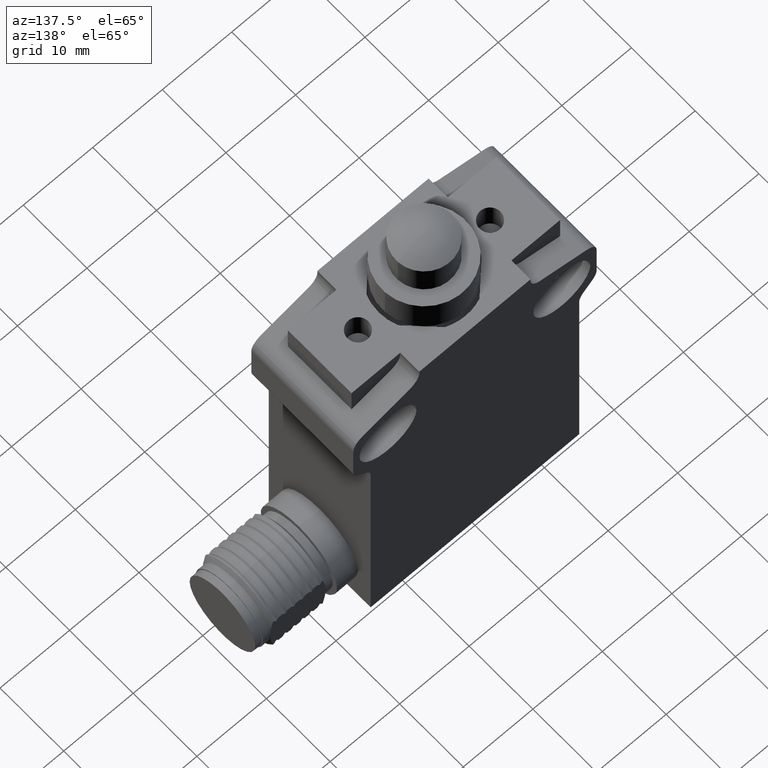
[diagram: clean part render]
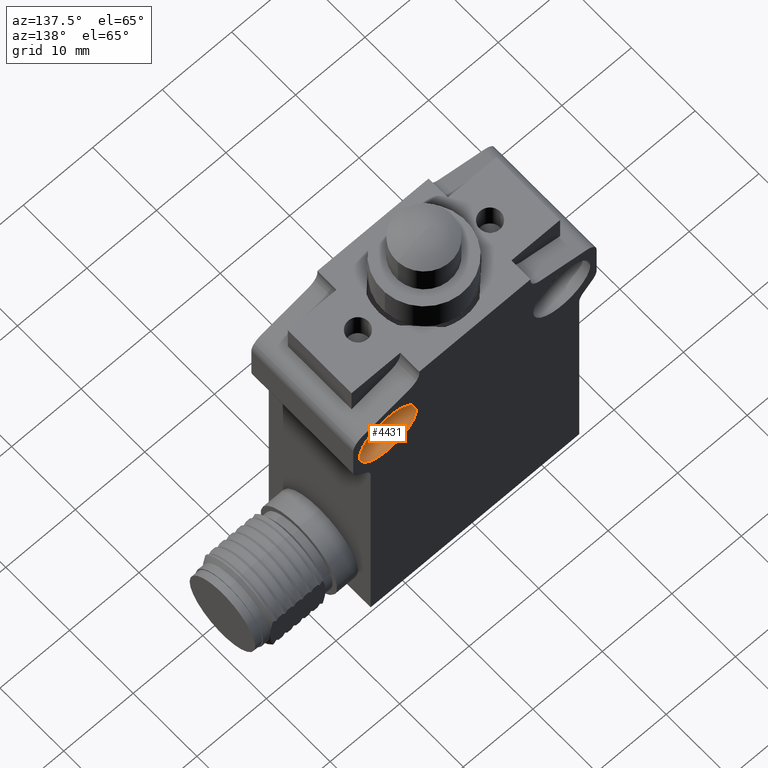
[diagram: same view with one face highlighted and labeled with its STEP entity id]
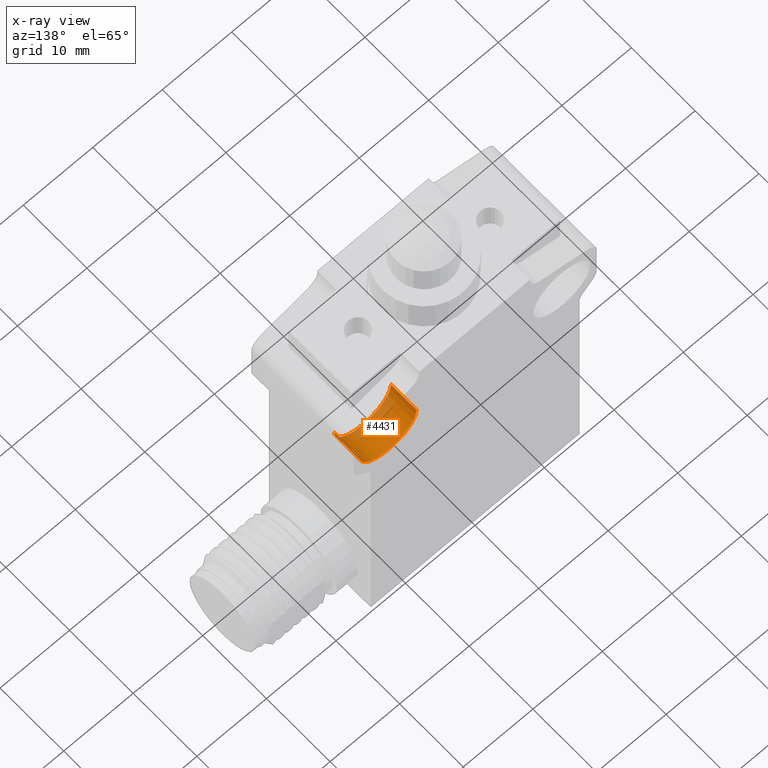
[diagram: x-ray of the same camera — body ghosted, the highlighted face saturated]
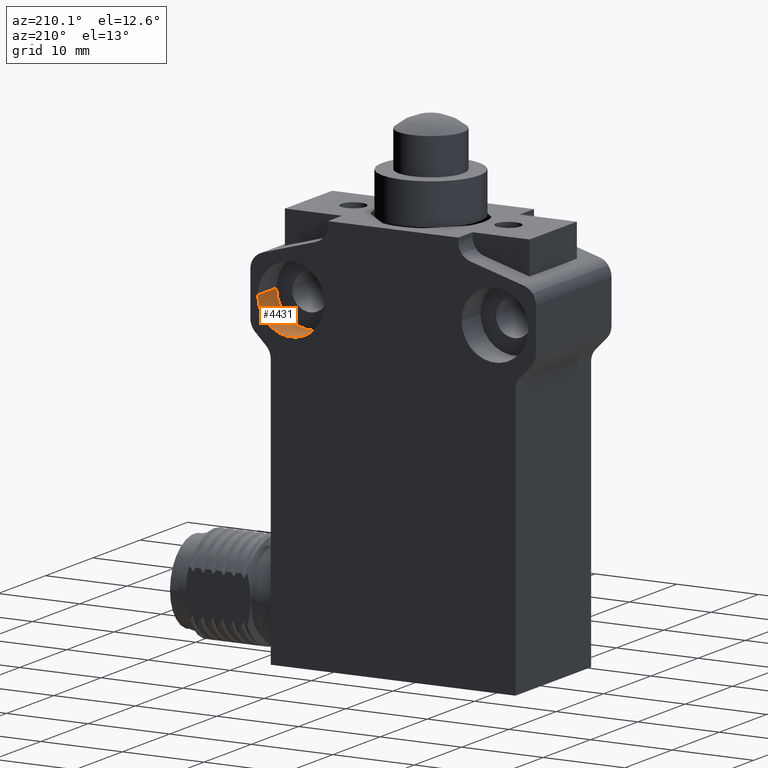
[diagram: same view with one face highlighted and labeled with its STEP entity id]
A machine part, auxiliary view. The second image highlights one B-rep face of the part: STEP entity #4431.
The next image is the same camera in x-ray: the body ghosted, the highlighted face saturated — about 22% of this face is hidden behind the body in this view.
A second angle (auxiliary view) of the same face is appended — the face is thin or edge-on in the first view.
In plain terms, the highlighted cylindrical surface (partial cylindrical patch) has radius 4.1 mm, axis along (0, 1, 0).
Its self-contained STEP definition (entity closure, byte-faithful):
#483 = EDGE_CURVE ( 'NONE', #7250, #4648, #6478, .T. ) ;
#487 = DIRECTION ( 'NONE',  ( 3.171725756085839466E-32, 1.000000000000000000, 6.016747033649589812E-18 ) ) ;
#660 = CARTESIAN_POINT ( 'NONE',  ( 0.6535433070866142335, -0.1574803149606299191, 3.301360458150288990E-16 ) ) ;
#668 = AXIS2_PLACEMENT_3D ( 'NONE', #5345, #5954, #6581 ) ;
#698 = EDGE_CURVE ( 'NONE', #6095, #4648, #1679, .T. ) ;
#746 = EDGE_CURVE ( 'NONE', #5630, #7250, #4723, .T. ) ;
#1679 = LINE ( 'NONE', #6697, #3947 ) ;
#1712 = CARTESIAN_POINT ( 'NONE',  ( 0.3307086614173229133, -0.1574803149606299191, 1.249241338582676703E-16 ) ) ;
#1983 = AXIS2_PLACEMENT_3D ( 'NONE', #6063, #487, #7841 ) ;
#2158 = ORIENTED_EDGE ( 'NONE', *, *, #698, .T. ) ;
#2321 = AXIS2_PLACEMENT_3D ( 'NONE', #7083, #4582, #5829 ) ;
#2754 = VECTOR ( 'NONE', #4387, 39.37007874015748143 ) ;
#2971 = DIRECTION ( 'NONE',  ( 3.171725756085839466E-32, 1.000000000000000000, 6.016747033649589812E-18 ) ) ;
#3255 = CARTESIAN_POINT ( 'NONE',  ( 0.3307086614173229133, -2.797412204724409697E-16, 1.249241338582676703E-16 ) ) ;
#3854 = CIRCLE ( 'NONE', #668, 0.1614173228346456601 ) ;
#3947 = VECTOR ( 'NONE', #2971, 39.37007874015748143 ) ;
#4081 = FACE_OUTER_BOUND ( 'NONE', #7738, .T. ) ;
#4387 = DIRECTION ( 'NONE',  ( 3.171725756085839466E-32, 1.000000000000000000, 6.016747033649589812E-18 ) ) ;
#4431 = ADVANCED_FACE ( 'NONE', ( #4081 ), #7079, .F. ) ;
#4582 = DIRECTION ( 'NONE',  ( 0.0000000000000000000, -1.000000000000000000, 0.0000000000000000000 ) ) ;
#4648 = VERTEX_POINT ( 'NONE', #6945 ) ;
#4723 = LINE ( 'NONE', #4964, #2754 ) ;
#4964 = CARTESIAN_POINT ( 'NONE',  ( 0.3307086614173229133, -0.07874015748031495954, 1.249241338582676703E-16 ) ) ;
#5145 = ORIENTED_EDGE ( 'NONE', *, *, #5841, .T. ) ;
#5345 = CARTESIAN_POINT ( 'NONE',  ( 0.4921259842519685179, -0.1574803149606299191, 1.398706299212598269E-16 ) ) ;
#5630 = VERTEX_POINT ( 'NONE', #1712 ) ;
#5829 = DIRECTION ( 'NONE',  ( 1.000000000000000000, 0.0000000000000000000, 0.0000000000000000000 ) ) ;
#5841 = EDGE_CURVE ( 'NONE', #5630, #6095, #3854, .T. ) ;
#5954 = DIRECTION ( 'NONE',  ( 0.0000000000000000000, -1.000000000000000000, 0.0000000000000000000 ) ) ;
#5998 = ORIENTED_EDGE ( 'NONE', *, *, #746, .F. ) ;
#6063 = CARTESIAN_POINT ( 'NONE',  ( 0.4921259842519685179, -0.07874015748031495954, 2.176461294498291054E-16 ) ) ;
#6095 = VERTEX_POINT ( 'NONE', #660 ) ;
#6270 = ORIENTED_EDGE ( 'NONE', *, *, #483, .F. ) ;
#6478 = CIRCLE ( 'NONE', #2321, 0.1614173228346456601 ) ;
#6581 = DIRECTION ( 'NONE',  ( 1.000000000000000000, 0.0000000000000000000, 0.0000000000000000000 ) ) ;
#6697 = CARTESIAN_POINT ( 'NONE',  ( 0.6535433070866142335, -0.07874015748031495954, 3.301360458150289483E-16 ) ) ;
#6945 = CARTESIAN_POINT ( 'NONE',  ( 0.6535433070866142335, -2.797412204724409697E-16, 3.301360458150288990E-16 ) ) ;
#7079 = CYLINDRICAL_SURFACE ( 'NONE', #1983, 0.1614173228346456601 ) ;
#7083 = CARTESIAN_POINT ( 'NONE',  ( 0.4921259842519685179, -2.797412204724409697E-16, 1.495135039370078819E-16 ) ) ;
#7250 = VERTEX_POINT ( 'NONE', #3255 ) ;
#7738 = EDGE_LOOP ( 'NONE', ( #5145, #2158, #6270, #5998 ) ) ;
#7841 = DIRECTION ( 'NONE',  ( -1.000000000000000000, 0.0000000000000000000, -5.744240702501611353E-16 ) ) ;